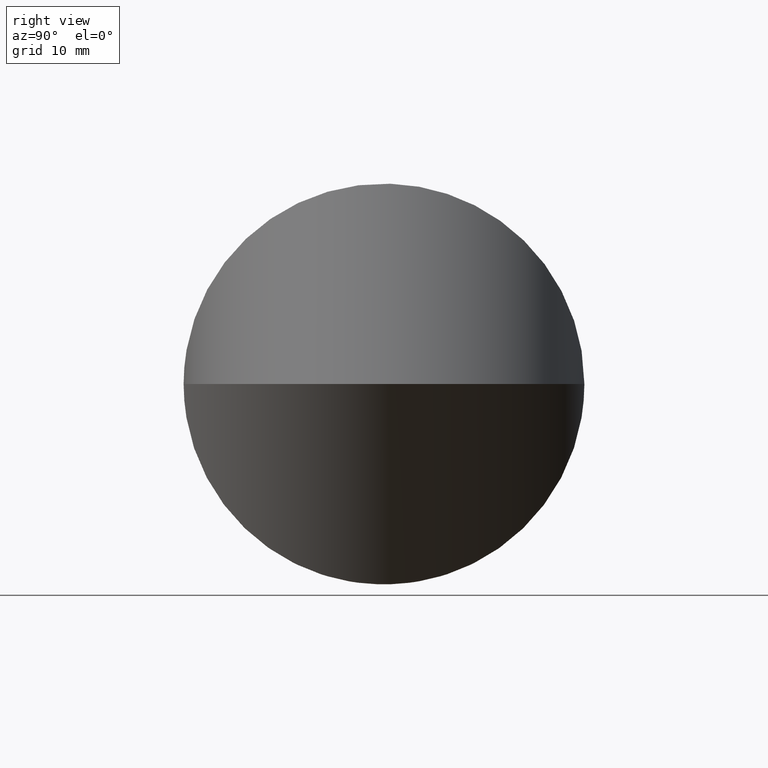
[diagram: clean part render]
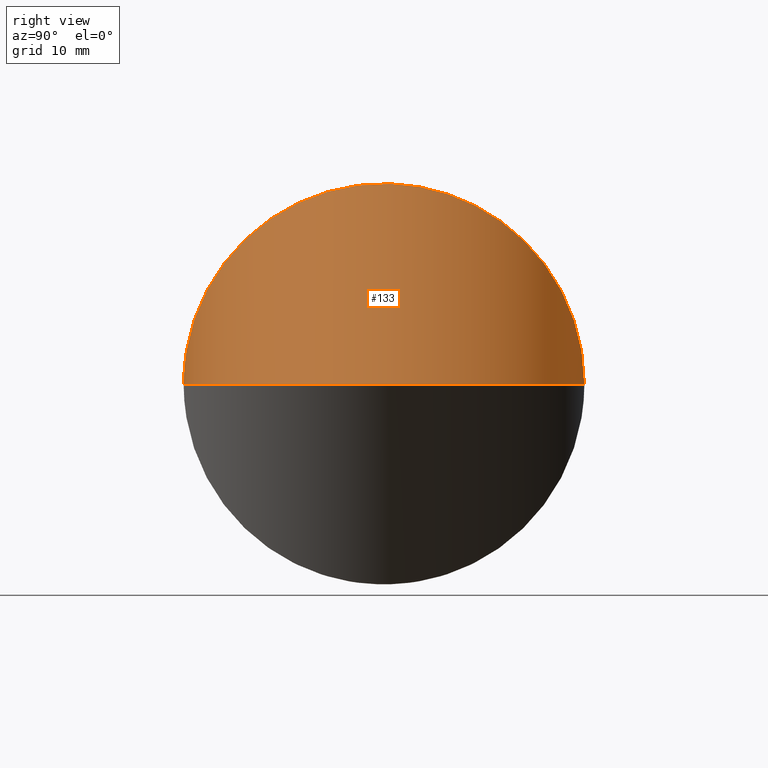
[diagram: same view with one face highlighted and labeled with its STEP entity id]
A machine part, right view. The second image highlights one B-rep face of the part: STEP entity #133.
In plain terms, the highlighted cylindrical surface (partial cylindrical patch) has radius 30 mm, axis along (-0.5, -0, 0.866).
Its self-contained STEP definition (entity closure, byte-faithful):
#18 = CARTESIAN_POINT ( 'NONE',  ( 6.938893903907228378E-15, -30.00000000000000000, 6.938893903907228378E-15 ) ) ;
#32 = CARTESIAN_POINT ( 'NONE',  ( -6.938893903907228378E-15, 30.00000000000000000, 0.000000000000000000 ) ) ;
#34 = CARTESIAN_POINT ( 'NONE',  ( 34.64101615137736445, -29.99999999999999289, 60.00000000000000711 ) ) ;
#73 = CARTESIAN_POINT ( 'NONE',  ( -0.000000000000000000, 0.000000000000000000, 0.000000000000000000 ) ) ;
#75 = CYLINDRICAL_SURFACE ( 'NONE', #135, 30.00000000000000355 ) ;
#86 = EDGE_CURVE ( 'NONE', #149, #234, #110, .T. ) ;
#110 =( BOUNDED_CURVE ( )  B_SPLINE_CURVE ( 3, ( #32, #255, #34, #153 ),
 .UNSPECIFIED., .F., .T. ) 
 B_SPLINE_CURVE_WITH_KNOTS ( ( 4, 4 ),
 ( 4.712388980384689674, 7.853981633974482790 ),
 .UNSPECIFIED. ) 
 CURVE ( )  GEOMETRIC_REPRESENTATION_ITEM ( )  RATIONAL_B_SPLINE_CURVE ( ( 1.000000000000000000, 0.3333333333333333703, 0.3333333333333333703, 1.000000000000000000 ) ) 
 REPRESENTATION_ITEM ( '' )  );
#117 = DIRECTION ( 'NONE',  ( 0.8660254037844362651, 2.651438096812260015E-16, 0.5000000000000039968 ) ) ;
#133 = ADVANCED_FACE ( 'NONE', ( #253 ), #75, .T. ) ;
#135 = AXIS2_PLACEMENT_3D ( 'NONE', #73, #235, #117 ) ;
#149 = VERTEX_POINT ( 'NONE', #236 ) ;
#153 = CARTESIAN_POINT ( 'NONE',  ( 6.938893903907228378E-15, -30.00000000000000000, 6.938893903907228378E-15 ) ) ;
#159 = ORIENTED_EDGE ( 'NONE', *, *, #248, .F. ) ;
#161 = CARTESIAN_POINT ( 'NONE',  ( -6.938893903907228378E-15, 30.00000000000000000, 0.000000000000000000 ) ) ;
#162 = CARTESIAN_POINT ( 'NONE',  ( 6.938893903907228378E-15, -30.00000000000000000, 6.938893903907228378E-15 ) ) ;
#163 = CARTESIAN_POINT ( 'NONE',  ( 69.28203230275512681, -29.99999999999998224, 2.201497699787782325E-13 ) ) ;
#179 = CARTESIAN_POINT ( 'NONE',  ( 69.28203230275511260, 30.00000000000002842, 2.413612747532763403E-13 ) ) ;
#192 = EDGE_LOOP ( 'NONE', ( #220, #159 ) ) ;
#210 =( BOUNDED_CURVE ( )  B_SPLINE_CURVE ( 3, ( #161, #179, #163, #162 ),
 .UNSPECIFIED., .F., .T. ) 
 B_SPLINE_CURVE_WITH_KNOTS ( ( 4, 4 ),
 ( 4.712388980384689674, 7.853981633974482790 ),
 .UNSPECIFIED. ) 
 CURVE ( )  GEOMETRIC_REPRESENTATION_ITEM ( )  RATIONAL_B_SPLINE_CURVE ( ( 1.000000000000000000, 0.3333333333333333703, 0.3333333333333333703, 1.000000000000000000 ) ) 
 REPRESENTATION_ITEM ( '' )  );
#220 = ORIENTED_EDGE ( 'NONE', *, *, #86, .T. ) ;
#234 = VERTEX_POINT ( 'NONE', #18 ) ;
#235 = DIRECTION ( 'NONE',  ( -0.5000000000000041078, -4.592425496802587777E-16, 0.8660254037844363761 ) ) ;
#236 = CARTESIAN_POINT ( 'NONE',  ( -6.938893903907228378E-15, 30.00000000000000000, 0.000000000000000000 ) ) ;
#248 = EDGE_CURVE ( 'NONE', #149, #234, #210, .T. ) ;
#253 = FACE_OUTER_BOUND ( 'NONE', #192, .T. ) ;
#255 = CARTESIAN_POINT ( 'NONE',  ( 34.64101615137732182, 30.00000000000002487, 60.00000000000000711 ) ) ;